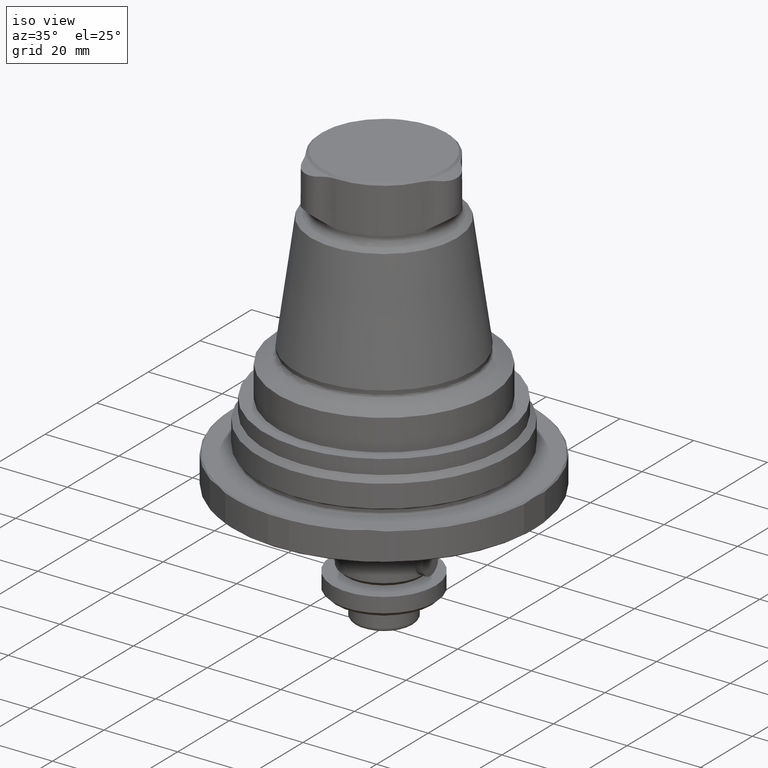
[diagram: clean part render]
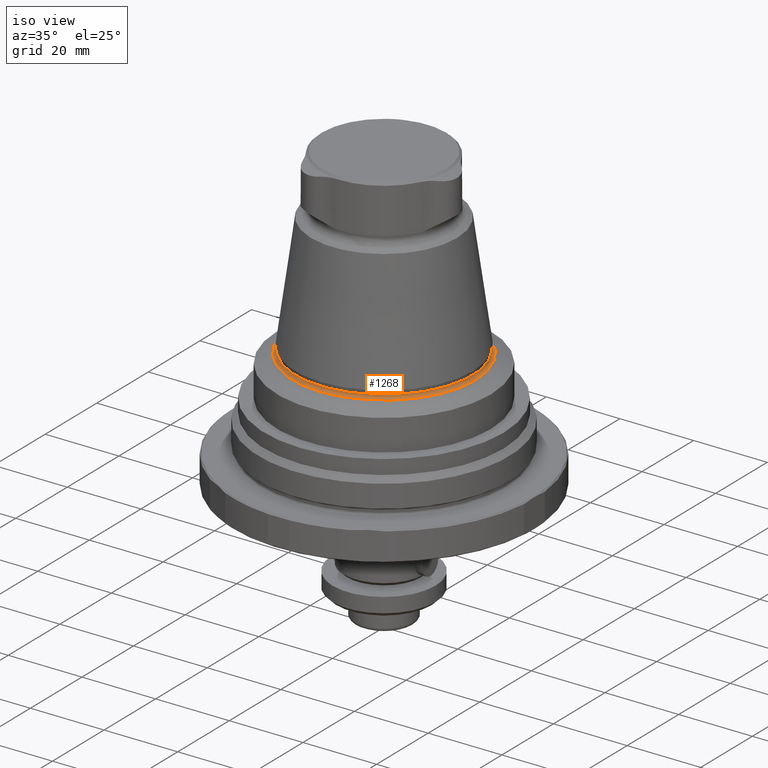
[diagram: same view with one face highlighted and labeled with its STEP entity id]
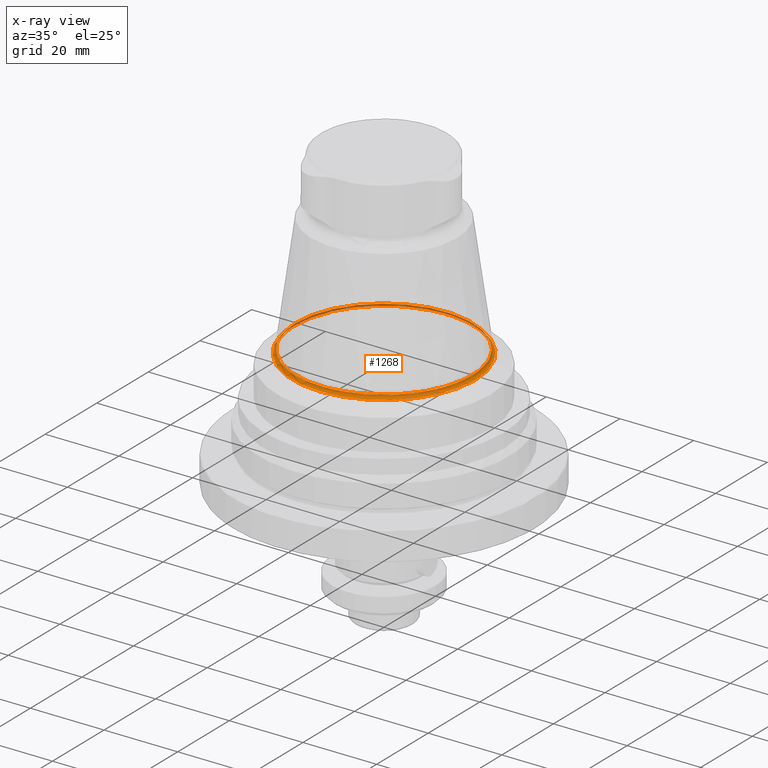
[diagram: x-ray of the same camera — body ghosted, the highlighted face saturated]
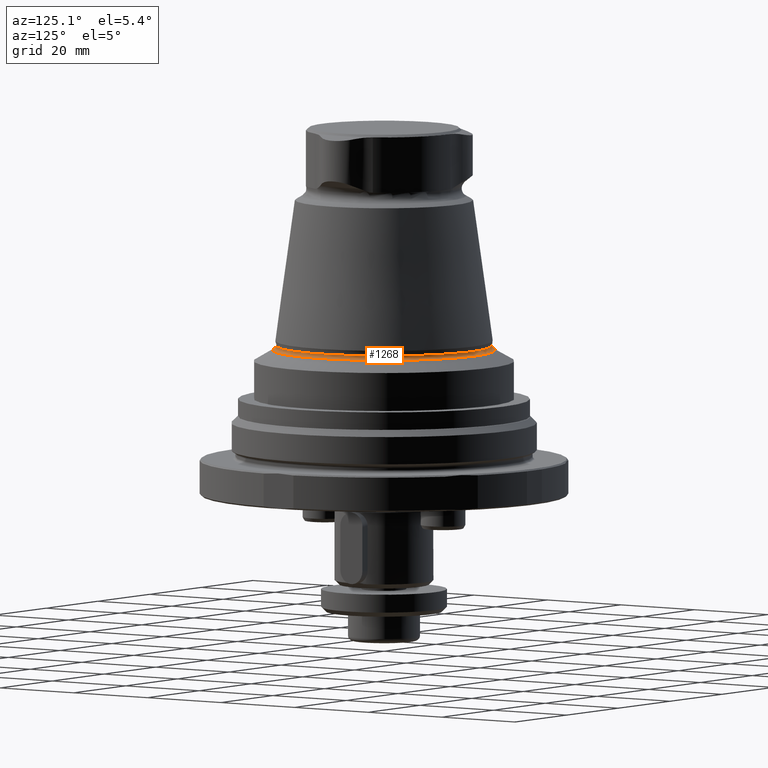
[diagram: same view with one face highlighted and labeled with its STEP entity id]
A machine part, iso view. The second image highlights one B-rep face of the part: STEP entity #1268.
The next image is the same camera in x-ray: the body ghosted, the highlighted face saturated — about 23% of this face is hidden behind the body in this view.
A second angle (auxiliary view) of the same face is appended — the face is thin or edge-on in the first view.
In plain terms, the highlighted toroidal blend (fillet) surface has major radius 24.8 mm and minor (blend) radius 0.8 mm.
Its self-contained STEP definition (entity closure, byte-faithful):
#543=ORIENTED_EDGE('',*,*,#712,.T.);
#544=ORIENTED_EDGE('',*,*,#713,.F.);
#712=EDGE_CURVE('',#832,#832,#911,.T.);
#713=EDGE_CURVE('',#833,#833,#912,.T.);
#832=VERTEX_POINT('',#2349);
#833=VERTEX_POINT('',#2352);
#911=CIRCLE('',#1443,24.0121537975902);
#912=CIRCLE('',#1445,24.8);
#1036=EDGE_LOOP('',(#543));
#1037=EDGE_LOOP('',(#544));
#1166=FACE_BOUND('',#1036,.T.);
#1167=FACE_BOUND('',#1037,.T.);
#1184=TOROIDAL_SURFACE('',#1444,24.8,0.8);
#1268=ADVANCED_FACE('',(#1166,#1167),#1184,.F.);
#1443=AXIS2_PLACEMENT_3D('',#2348,#1810,#1811);
#1444=AXIS2_PLACEMENT_3D('',#2350,#1812,#1813);
#1445=AXIS2_PLACEMENT_3D('',#2351,#1814,#1815);
#1810=DIRECTION('',(1.22461692971323E-16,-7.49836836562635E-33,-1.));
#1811=DIRECTION('',(-1.,6.12303176911189E-17,-1.22461692971323E-16));
#1812=DIRECTION('',(1.22461692971323E-16,-7.49836836562635E-33,-1.));
#1813=DIRECTION('',(-1.,6.12303176911189E-17,-1.22461692971323E-16));
#1814=DIRECTION('',(1.22461692971323E-16,-7.49836836562635E-33,-1.));
#1815=DIRECTION('',(-1.,6.12303176911189E-17,-1.22461692971323E-16));
#2348=CARTESIAN_POINT('',(5.96453016039818E-15,-3.65210076599441E-31,24.2956915959715));
#2349=CARTESIAN_POINT('',(-24.0121537975902,1.47027180547446E-15,24.2956915959715));
#2350=CARTESIAN_POINT('',(6.93889390390723E-15,-4.24870678161208E-31,24.1567730538379));
#2351=CARTESIAN_POINT('',(6.07951171463002E-15,-3.72250433693675E-31,23.3567730538379));
#2352=CARTESIAN_POINT('',(-24.8,1.51851187873975E-15,23.3567730538379));